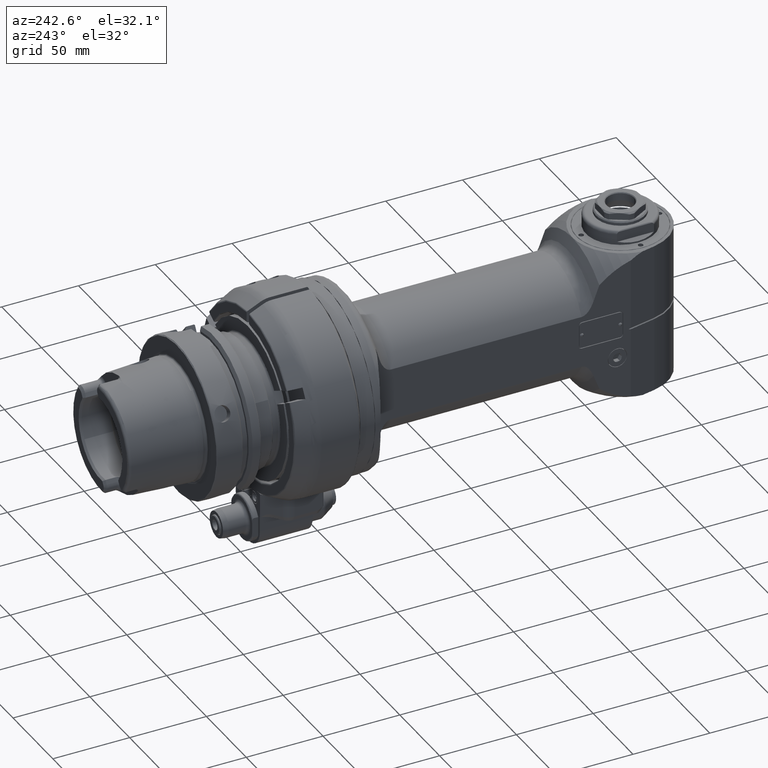
[diagram: clean part render]
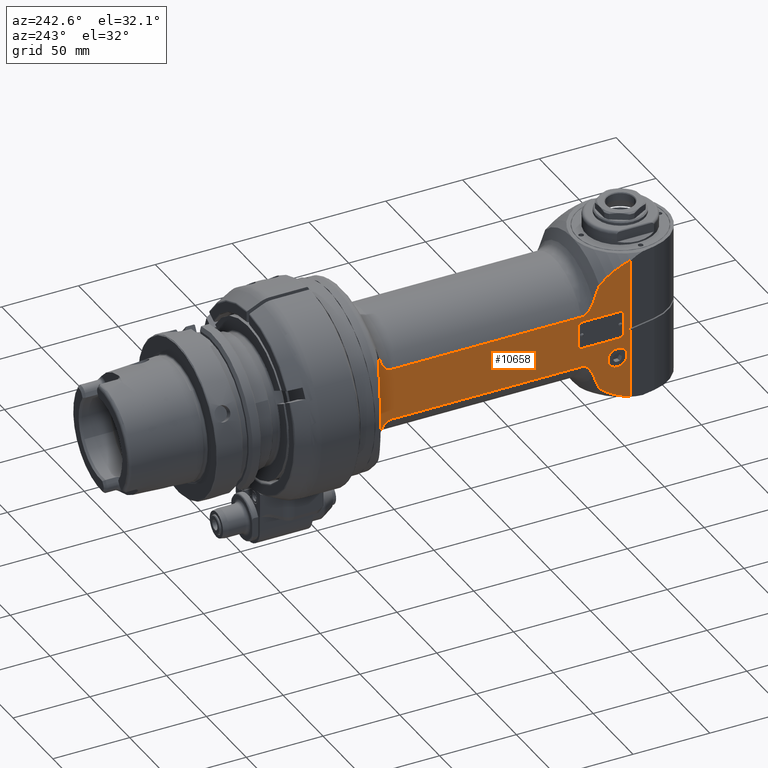
[diagram: same view with one face highlighted and labeled with its STEP entity id]
A machine part, auxiliary view. The second image highlights one B-rep face of the part: STEP entity #10658.
In plain terms, the highlighted planar face has unit normal (1, 0, -0).
Its self-contained STEP definition (entity closure, byte-faithful):
#360=B_SPLINE_CURVE_WITH_KNOTS('',3,(#32864,#32865,#32866,#32867,#32868,
#32869,#32870,#32871,#32872,#32873,#32874,#32875,#32876,#32877),
 .UNSPECIFIED.,.F.,.F.,(4,2,2,2,2,2,4),(-3.38938345646085,-3.26662172016158,
-3.12262372485883,-2.91218233429832,-2.7017409437378,-2.42136508411959,
-2.24338921671169),.UNSPECIFIED.);
#361=B_SPLINE_CURVE_WITH_KNOTS('',3,(#32881,#32882,#32883,#32884,#32885,
#32886,#32887,#32888,#32889,#32890,#32891,#32892,#32893,#32894,#32895,#32896),
 .UNSPECIFIED.,.F.,.F.,(4,2,2,2,2,2,2,4),(3.0557325103438,3.16453283287773,
3.29192380124002,3.4787538185637,3.66558383588739,3.91846915486091,4.17135447383444,
4.18910923555308),.UNSPECIFIED.);
#362=B_SPLINE_CURVE_WITH_KNOTS('',3,(#32907,#32908,#32909,#32910,#32911,
#32912,#32913,#32914,#32915,#32916,#32917,#32918,#32919,#32920,#32921,#32922),
 .UNSPECIFIED.,.F.,.F.,(4,2,2,2,2,2,2,4),(1.92235578593393,1.94011054685315,
2.19299586582667,2.4458811848002,2.63271120212388,2.81954121944757,2.94693218780986,
3.05573251034379),.UNSPECIFIED.);
#363=B_SPLINE_CURVE_WITH_KNOTS('',3,(#32924,#32925,#32926,#32927,#32928,
#32929,#32930,#32931,#32932,#32933,#32934,#32935,#32936,#32937),
 .UNSPECIFIED.,.F.,.F.,(4,2,2,2,2,2,4),(-4.53537769620374,-4.3574018288021,
-4.07702596918389,-3.86658457862338,-3.65614318806286,-3.51214519276011,
-3.38938345646085),.UNSPECIFIED.);
#364=B_SPLINE_CURVE_WITH_KNOTS('',3,(#32955,#32956,#32957,#32958,#32959,
#32960,#32961,#32962,#32963,#32964),.UNSPECIFIED.,.F.,.F.,(4,3,3,4),(4.06829625219017E-6,
0.3333333333333,0.6666666666667,1.),.UNSPECIFIED.);
#365=B_SPLINE_CURVE_WITH_KNOTS('',3,(#32975,#32976,#32977,#32978,#32979,
#32980,#32981,#32982,#32983,#32984,#32985,#32986,#32987,#32988,#32989,#32990,
#32991,#32992,#32993),.UNSPECIFIED.,.F.,.F.,(4,2,2,2,3,2,2,2,4),(0.586526521156412,
0.601693019160203,0.61989198188955,0.625445992489476,0.630141025033814,
0.634836057578152,0.640390068178077,0.658589030907424,0.673754441669544),
 .UNSPECIFIED.);
#649=FACE_BOUND('',#2359,.T.);
#650=FACE_BOUND('',#2360,.T.);
#1054=CIRCLE('',#11713,2.);
#1055=CIRCLE('',#11714,2.);
#1056=CIRCLE('',#11715,2.);
#1057=CIRCLE('',#11716,2.);
#1058=CIRCLE('',#11717,6.25);
#1672=FACE_OUTER_BOUND('',#2358,.T.);
#2358=EDGE_LOOP('',(#8981,#8982,#8983,#8984,#8985,#8986,#8987,#8988,#8989,
#8990,#8991,#8992,#8993,#8994,#8995,#8996,#8997,#8998,#8999,#9000,#9001,
#9002,#9003,#9004,#9005,#9006));
#2359=EDGE_LOOP('',(#9007,#9008,#9009,#9010,#9011,#9012,#9013,#9014));
#2360=EDGE_LOOP('',(#9015));
#2730=(
BOUNDED_CURVE()
B_SPLINE_CURVE(2,(#32834,#32835,#32836),.UNSPECIFIED.,.F.,.F.)
B_SPLINE_CURVE_WITH_KNOTS((3,3),(-6.37611725450735,-5.93914402311009),
 .UNSPECIFIED.)
CURVE()
GEOMETRIC_REPRESENTATION_ITEM()
RATIONAL_B_SPLINE_CURVE((3.03109625503758,3.0115736684826,2.9851874140873))
REPRESENTATION_ITEM('')
);
#2731=(
BOUNDED_CURVE()
B_SPLINE_CURVE(2,(#32840,#32841,#32842),.UNSPECIFIED.,.F.,.F.)
B_SPLINE_CURVE_WITH_KNOTS((3,3),(-29.0812699928069,-29.0631688209348),
 .UNSPECIFIED.)
CURVE()
GEOMETRIC_REPRESENTATION_ITEM()
RATIONAL_B_SPLINE_CURVE((1.01070377409032,1.01114109954095,1.0115778764322))
REPRESENTATION_ITEM('')
);
#2732=(
BOUNDED_CURVE()
B_SPLINE_CURVE(2,(#32844,#32845,#32846),.UNSPECIFIED.,.F.,.F.)
B_SPLINE_CURVE_WITH_KNOTS((3,3),(-19.9866804527026,-19.7686945965766),
 .UNSPECIFIED.)
CURVE()
GEOMETRIC_REPRESENTATION_ITEM()
RATIONAL_B_SPLINE_CURVE((1.00424655198579,1.01180066800987,1.01918950011015))
REPRESENTATION_ITEM('')
);
#2733=(
BOUNDED_CURVE()
B_SPLINE_CURVE(2,(#32848,#32849,#32850),.UNSPECIFIED.,.F.,.F.)
B_SPLINE_CURVE_WITH_KNOTS((3,3),(15.8614960635542,16.1172685456708),
 .UNSPECIFIED.)
CURVE()
GEOMETRIC_REPRESENTATION_ITEM()
RATIONAL_B_SPLINE_CURVE((1.04723283444041,1.03682349322396,1.02606616122681))
REPRESENTATION_ITEM('')
);
#2734=(
BOUNDED_CURVE()
B_SPLINE_CURVE(2,(#32852,#32853,#32854),.UNSPECIFIED.,.F.,.F.)
B_SPLINE_CURVE_WITH_KNOTS((3,3),(13.7580701830611,14.0725444893229),
 .UNSPECIFIED.)
CURVE()
GEOMETRIC_REPRESENTATION_ITEM()
RATIONAL_B_SPLINE_CURVE((1.08930267109013,1.07525245581085,1.06051327922415))
REPRESENTATION_ITEM('')
);
#2735=(
BOUNDED_CURVE()
B_SPLINE_CURVE(2,(#32856,#32857,#32858),.UNSPECIFIED.,.F.,.F.)
B_SPLINE_CURVE_WITH_KNOTS((3,3),(12.5043567703673,12.9108760300901),
 .UNSPECIFIED.)
CURVE()
GEOMETRIC_REPRESENTATION_ITEM()
RATIONAL_B_SPLINE_CURVE((1.14919418411878,1.13056577973156,1.11056846329993))
REPRESENTATION_ITEM('')
);
#2736=(
BOUNDED_CURVE()
B_SPLINE_CURVE(2,(#32860,#32861,#32862),.UNSPECIFIED.,.F.,.F.)
B_SPLINE_CURVE_WITH_KNOTS((3,3),(12.7538152080521,13.9336467514351),
 .UNSPECIFIED.)
CURVE()
GEOMETRIC_REPRESENTATION_ITEM()
RATIONAL_B_SPLINE_CURVE((1.57057976842774,1.51652326734331,1.44758255410693))
REPRESENTATION_ITEM('')
);
#2737=(
BOUNDED_CURVE()
B_SPLINE_CURVE(2,(#32898,#32899,#32900),.UNSPECIFIED.,.F.,.F.)
B_SPLINE_CURVE_WITH_KNOTS((3,3),(-1.68251569462955,-1.5670841050122),
 .UNSPECIFIED.)
CURVE()
GEOMETRIC_REPRESENTATION_ITEM()
RATIONAL_B_SPLINE_CURVE((1.2041077830671,1.19857040561924,1.19283212247741))
REPRESENTATION_ITEM('')
);
#2738=(
BOUNDED_CURVE()
B_SPLINE_CURVE(2,(#32904,#32905,#32906),.UNSPECIFIED.,.F.,.F.)
B_SPLINE_CURVE_WITH_KNOTS((3,3),(8.04558354401387,8.16101513439797),
 .UNSPECIFIED.)
CURVE()
GEOMETRIC_REPRESENTATION_ITEM()
RATIONAL_B_SPLINE_CURVE((1.20410778314095,1.19857040565765,1.19283212247771))
REPRESENTATION_ITEM('')
);
#2739=(
BOUNDED_CURVE()
B_SPLINE_CURVE(2,(#32939,#32940,#32941),.UNSPECIFIED.,.F.,.F.)
B_SPLINE_CURVE_WITH_KNOTS((3,3),(3.00415619201386,4.18398773548825),
 .UNSPECIFIED.)
CURVE()
GEOMETRIC_REPRESENTATION_ITEM()
RATIONAL_B_SPLINE_CURVE((1.447582554107,1.51652326734872,1.57057976843617))
REPRESENTATION_ITEM('')
);
#2740=(
BOUNDED_CURVE()
B_SPLINE_CURVE(2,(#32943,#32944,#32945),.UNSPECIFIED.,.F.,.F.)
B_SPLINE_CURVE_WITH_KNOTS((3,3),(1.0338612736708,1.44038053878032),
 .UNSPECIFIED.)
CURVE()
GEOMETRIC_REPRESENTATION_ITEM()
RATIONAL_B_SPLINE_CURVE((1.11056846277,1.13056577948476,1.14919418411882))
REPRESENTATION_ITEM('')
);
#2741=(
BOUNDED_CURVE()
B_SPLINE_CURVE(2,(#32947,#32948,#32949),.UNSPECIFIED.,.F.,.F.)
B_SPLINE_CURVE_WITH_KNOTS((3,3),(0.6172392737301,0.93171358828536),
 .UNSPECIFIED.)
CURVE()
GEOMETRIC_REPRESENTATION_ITEM()
RATIONAL_B_SPLINE_CURVE((1.06051327798197,1.07525245498641,1.08930267064709))
REPRESENTATION_ITEM('')
);
#2742=(
BOUNDED_CURVE()
B_SPLINE_CURVE(2,(#32951,#32952,#32953),.UNSPECIFIED.,.F.,.F.)
B_SPLINE_CURVE_WITH_KNOTS((3,3),(0.304034443941965,0.559808835705629),
 .UNSPECIFIED.)
CURVE()
GEOMETRIC_REPRESENTATION_ITEM()
RATIONAL_B_SPLINE_CURVE((1.02606599956365,1.03682341449199,1.04723283344327))
REPRESENTATION_ITEM('')
);
#2743=(
BOUNDED_CURVE()
B_SPLINE_CURVE(2,(#32966,#32967,#32968),.UNSPECIFIED.,.F.,.F.)
B_SPLINE_CURVE_WITH_KNOTS((3,3),(-0.23794467547868,-0.21984349965335),
 .UNSPECIFIED.)
CURVE()
GEOMETRIC_REPRESENTATION_ITEM()
RATIONAL_B_SPLINE_CURVE((1.01157788454873,1.01114110756647,1.01070378202461))
REPRESENTATION_ITEM('')
);
#2744=(
BOUNDED_CURVE()
B_SPLINE_CURVE(2,(#32972,#32973,#32974),.UNSPECIFIED.,.F.,.F.)
B_SPLINE_CURVE_WITH_KNOTS((3,3),(-9.29888521673233,-8.86191578947951),
 .UNSPECIFIED.)
CURVE()
GEOMETRIC_REPRESENTATION_ITEM()
RATIONAL_B_SPLINE_CURVE((2.98518787354792,3.01157383847557,3.03109625506803))
REPRESENTATION_ITEM('')
);
#3285=LINE('',#32828,#3952);
#3286=LINE('',#32838,#3953);
#3287=LINE('',#32879,#3954);
#3288=LINE('',#32902,#3955);
#3289=LINE('',#32970,#3956);
#3290=LINE('',#32996,#3957);
#3291=LINE('',#33000,#3958);
#3292=LINE('',#33004,#3959);
#3293=LINE('',#33008,#3960);
#3952=VECTOR('',#14191,124.2601241953);
#3953=VECTOR('',#14198,10.);
#3954=VECTOR('',#14199,124.2601241952);
#3955=VECTOR('',#14200,53.76405748567);
#3956=VECTOR('',#14201,10.);
#3957=VECTOR('',#14202,25.);
#3958=VECTOR('',#14205,14.);
#3959=VECTOR('',#14208,25.);
#3960=VECTOR('',#14211,14.);
#4867=VERTEX_POINT('',#32826);
#4868=VERTEX_POINT('',#32827);
#4869=VERTEX_POINT('',#32832);
#4870=VERTEX_POINT('',#32833);
#4871=VERTEX_POINT('',#32837);
#4872=VERTEX_POINT('',#32839);
#4873=VERTEX_POINT('',#32843);
#4874=VERTEX_POINT('',#32847);
#4875=VERTEX_POINT('',#32851);
#4876=VERTEX_POINT('',#32855);
#4877=VERTEX_POINT('',#32859);
#4878=VERTEX_POINT('',#32863);
#4879=VERTEX_POINT('',#32878);
#4880=VERTEX_POINT('',#32880);
#4881=VERTEX_POINT('',#32897);
#4882=VERTEX_POINT('',#32901);
#4883=VERTEX_POINT('',#32903);
#4884=VERTEX_POINT('',#32923);
#4885=VERTEX_POINT('',#32938);
#4886=VERTEX_POINT('',#32942);
#4887=VERTEX_POINT('',#32946);
#4888=VERTEX_POINT('',#32950);
#4889=VERTEX_POINT('',#32954);
#4890=VERTEX_POINT('',#32965);
#4891=VERTEX_POINT('',#32969);
#4892=VERTEX_POINT('',#32971);
#4893=VERTEX_POINT('',#32994);
#4894=VERTEX_POINT('',#32995);
#4895=VERTEX_POINT('',#32997);
#4896=VERTEX_POINT('',#32999);
#4897=VERTEX_POINT('',#33001);
#4898=VERTEX_POINT('',#33003);
#4899=VERTEX_POINT('',#33005);
#4900=VERTEX_POINT('',#33007);
#4901=VERTEX_POINT('',#33010);
#6291=EDGE_CURVE('',#4867,#4868,#3285,.T.);
#6294=EDGE_CURVE('',#4869,#4870,#2730,.T.);
#6295=EDGE_CURVE('',#4871,#4869,#3286,.T.);
#6296=EDGE_CURVE('',#4871,#4872,#2731,.T.);
#6297=EDGE_CURVE('',#4872,#4873,#2732,.T.);
#6298=EDGE_CURVE('',#4874,#4873,#2733,.T.);
#6299=EDGE_CURVE('',#4875,#4874,#2734,.T.);
#6300=EDGE_CURVE('',#4876,#4875,#2735,.T.);
#6301=EDGE_CURVE('',#4877,#4876,#2736,.T.);
#6302=EDGE_CURVE('',#4878,#4877,#360,.T.);
#6303=EDGE_CURVE('',#4879,#4878,#3287,.T.);
#6304=EDGE_CURVE('',#4879,#4880,#361,.T.);
#6305=EDGE_CURVE('',#4880,#4881,#2737,.T.);
#6306=EDGE_CURVE('',#4882,#4881,#3288,.T.);
#6307=EDGE_CURVE('',#4883,#4882,#2738,.T.);
#6308=EDGE_CURVE('',#4883,#4868,#362,.T.);
#6309=EDGE_CURVE('',#4884,#4867,#363,.T.);
#6310=EDGE_CURVE('',#4885,#4884,#2739,.T.);
#6311=EDGE_CURVE('',#4886,#4885,#2740,.T.);
#6312=EDGE_CURVE('',#4887,#4886,#2741,.T.);
#6313=EDGE_CURVE('',#4888,#4887,#2742,.T.);
#6314=EDGE_CURVE('',#4889,#4888,#364,.T.);
#6315=EDGE_CURVE('',#4889,#4890,#2743,.T.);
#6316=EDGE_CURVE('',#4891,#4890,#3289,.T.);
#6317=EDGE_CURVE('',#4892,#4891,#2744,.T.);
#6318=EDGE_CURVE('',#4892,#4870,#365,.T.);
#6319=EDGE_CURVE('',#4893,#4894,#3290,.T.);
#6320=EDGE_CURVE('',#4894,#4895,#1054,.T.);
#6321=EDGE_CURVE('',#4895,#4896,#3291,.T.);
#6322=EDGE_CURVE('',#4896,#4897,#1055,.T.);
#6323=EDGE_CURVE('',#4897,#4898,#3292,.T.);
#6324=EDGE_CURVE('',#4898,#4899,#1056,.T.);
#6325=EDGE_CURVE('',#4899,#4900,#3293,.T.);
#6326=EDGE_CURVE('',#4900,#4893,#1057,.T.);
#6327=EDGE_CURVE('',#4901,#4901,#1058,.T.);
#8981=ORIENTED_EDGE('',*,*,#6294,.F.);
#8982=ORIENTED_EDGE('',*,*,#6295,.F.);
#8983=ORIENTED_EDGE('',*,*,#6296,.T.);
#8984=ORIENTED_EDGE('',*,*,#6297,.T.);
#8985=ORIENTED_EDGE('',*,*,#6298,.F.);
#8986=ORIENTED_EDGE('',*,*,#6299,.F.);
#8987=ORIENTED_EDGE('',*,*,#6300,.F.);
#8988=ORIENTED_EDGE('',*,*,#6301,.F.);
#8989=ORIENTED_EDGE('',*,*,#6302,.F.);
#8990=ORIENTED_EDGE('',*,*,#6303,.F.);
#8991=ORIENTED_EDGE('',*,*,#6304,.T.);
#8992=ORIENTED_EDGE('',*,*,#6305,.T.);
#8993=ORIENTED_EDGE('',*,*,#6306,.F.);
#8994=ORIENTED_EDGE('',*,*,#6307,.F.);
#8995=ORIENTED_EDGE('',*,*,#6308,.T.);
#8996=ORIENTED_EDGE('',*,*,#6291,.F.);
#8997=ORIENTED_EDGE('',*,*,#6309,.F.);
#8998=ORIENTED_EDGE('',*,*,#6310,.F.);
#8999=ORIENTED_EDGE('',*,*,#6311,.F.);
#9000=ORIENTED_EDGE('',*,*,#6312,.F.);
#9001=ORIENTED_EDGE('',*,*,#6313,.F.);
#9002=ORIENTED_EDGE('',*,*,#6314,.F.);
#9003=ORIENTED_EDGE('',*,*,#6315,.T.);
#9004=ORIENTED_EDGE('',*,*,#6316,.F.);
#9005=ORIENTED_EDGE('',*,*,#6317,.F.);
#9006=ORIENTED_EDGE('',*,*,#6318,.T.);
#9007=ORIENTED_EDGE('',*,*,#6319,.T.);
#9008=ORIENTED_EDGE('',*,*,#6320,.T.);
#9009=ORIENTED_EDGE('',*,*,#6321,.T.);
#9010=ORIENTED_EDGE('',*,*,#6322,.T.);
#9011=ORIENTED_EDGE('',*,*,#6323,.T.);
#9012=ORIENTED_EDGE('',*,*,#6324,.T.);
#9013=ORIENTED_EDGE('',*,*,#6325,.T.);
#9014=ORIENTED_EDGE('',*,*,#6326,.T.);
#9015=ORIENTED_EDGE('',*,*,#6327,.T.);
#10173=PLANE('',#11712);
#10658=ADVANCED_FACE('',(#1672,#649,#650),#10173,.F.);
#11712=AXIS2_PLACEMENT_3D('',#32831,#14196,#14197);
#11713=AXIS2_PLACEMENT_3D('',#32998,#14203,#14204);
#11714=AXIS2_PLACEMENT_3D('',#33002,#14206,#14207);
#11715=AXIS2_PLACEMENT_3D('',#33006,#14209,#14210);
#11716=AXIS2_PLACEMENT_3D('',#33009,#14212,#14213);
#11717=AXIS2_PLACEMENT_3D('',#33011,#14214,#14215);
#14191=DIRECTION('',(-1.,-1.188525350221E-13,-5.93547901626E-14));
#14196=DIRECTION('center_axis',(0.,0.,1.));
#14197=DIRECTION('ref_axis',(0.,1.,0.));
#14198=DIRECTION('',(0.,1.,0.));
#14199=DIRECTION('',(1.,0.,0.));
#14200=DIRECTION('',(-1.252342787904E-12,-1.,-1.054103638278E-12));
#14201=DIRECTION('',(0.,1.,0.));
#14202=DIRECTION('',(1.,0.,0.));
#14203=DIRECTION('center_axis',(0.,0.,1.));
#14204=DIRECTION('ref_axis',(0.,-1.,0.));
#14205=DIRECTION('',(0.,1.,0.));
#14206=DIRECTION('center_axis',(0.,0.,1.));
#14207=DIRECTION('ref_axis',(1.,0.,0.));
#14208=DIRECTION('',(-1.,0.,0.));
#14209=DIRECTION('center_axis',(0.,0.,1.));
#14210=DIRECTION('ref_axis',(0.,1.,0.));
#14211=DIRECTION('',(0.,-1.,0.));
#14212=DIRECTION('center_axis',(0.,0.,1.));
#14213=DIRECTION('ref_axis',(-1.,0.,0.));
#14214=DIRECTION('center_axis',(0.,0.,1.));
#14215=DIRECTION('ref_axis',(0.,-1.,0.));
#32826=CARTESIAN_POINT('',(235.2122440389,16.97056274848,-34.));
#32827=CARTESIAN_POINT('',(110.9521198437,16.97056274848,-34.));
#32828=CARTESIAN_POINT('',(235.2122440389,16.97056274848,-34.));
#32831=CARTESIAN_POINT('Origin',(208.688375936,-43.96491673104,-34.));
#32832=CARTESIAN_POINT('',(267.207437955125,-0.646011301663342,-34.0000000010184));
#32833=CARTESIAN_POINT('',(266.028037948985,-0.282846365790939,-33.9999999587464));
#32834=CARTESIAN_POINT('Ctrl Pts',(267.207437954959,-0.646011302194517,
-34.));
#32835=CARTESIAN_POINT('Ctrl Pts',(266.626514019068,-0.492929705822718,
-34.));
#32836=CARTESIAN_POINT('Ctrl Pts',(266.028037929158,-0.282846422218705,
-34.));
#32837=CARTESIAN_POINT('',(267.2074379648,-46.31735122135,-34.));
#32838=CARTESIAN_POINT('',(267.207437964818,-57.38245956552,-34.));
#32839=CARTESIAN_POINT('',(266.759249436779,-46.2192805081788,-33.9999999982256));
#32840=CARTESIAN_POINT('Ctrl Pts',(267.2074379648,-46.3173512213512,-34.));
#32841=CARTESIAN_POINT('Ctrl Pts',(266.983106204958,-46.2682821183061,-34.));
#32842=CARTESIAN_POINT('Ctrl Pts',(266.75924943722,-46.2192805061775,-34.));
#32843=CARTESIAN_POINT('',(261.759249421153,-44.5451818399027,-34.0000000002716));
#32844=CARTESIAN_POINT('Ctrl Pts',(266.759249436933,-46.2192805077322,-34.));
#32845=CARTESIAN_POINT('Ctrl Pts',(264.213138356735,-45.3723433874321,-34.));
#32846=CARTESIAN_POINT('Ctrl Pts',(261.759249421062,-44.5451818401711,-34.));
#32847=CARTESIAN_POINT('',(256.759249414489,-42.2329602400364,-34.0000000018601));
#32848=CARTESIAN_POINT('Ctrl Pts',(256.759249413712,-42.2329602417,-34.));
#32849=CARTESIAN_POINT('Ctrl Pts',(259.192636398675,-43.3699887108055,-34.));
#32850=CARTESIAN_POINT('Ctrl Pts',(261.759249421109,-44.5451818399988,-34.));
#32851=CARTESIAN_POINT('',(251.759249376987,-39.1948333572121,-34.0000000127697));
#32852=CARTESIAN_POINT('Ctrl Pts',(251.759249370577,-39.1948333676066,-34.));
#32853=CARTESIAN_POINT('Ctrl Pts',(254.165972675464,-40.6805171026288,-34.));
#32854=CARTESIAN_POINT('Ctrl Pts',(256.75924941407,-42.2329602407372,-34.));
#32855=CARTESIAN_POINT('',(246.759249568616,-35.2845577993553,-33.999999924886));
#32856=CARTESIAN_POINT('Ctrl Pts',(246.759249643607,-35.2845577058663,-34.));
#32857=CARTESIAN_POINT('Ctrl Pts',(249.127995902977,-37.1837516526063,-34.));
#32858=CARTESIAN_POINT('Ctrl Pts',(251.759249373315,-39.1948333620264,-34.));
#32859=CARTESIAN_POINT('',(243.006472673,-25.50000000007,-34.00000000001));
#32860=CARTESIAN_POINT('Ctrl Pts',(243.006472673161,-25.5000000006562,-34.));
#32861=CARTESIAN_POINT('Ctrl Pts',(244.580816775586,-30.0447399572416,-34.));
#32862=CARTESIAN_POINT('Ctrl Pts',(246.75924954011,-35.2845578112441,-34.));
#32863=CARTESIAN_POINT('',(235.2122440389,-16.97056274848,-34.));
#32864=CARTESIAN_POINT('Ctrl Pts',(235.2122440389,-16.9705627484771,-34.));
#32865=CARTESIAN_POINT('Ctrl Pts',(235.621449826564,-16.9705627484771,-34.));
#32866=CARTESIAN_POINT('Ctrl Pts',(236.105867080769,-17.0509805712282,-34.));
#32867=CARTESIAN_POINT('Ctrl Pts',(236.952877761955,-17.3216241650835,-34.));
#32868=CARTESIAN_POINT('Ctrl Pts',(237.466115327277,-17.5830700752859,-34.));
#32869=CARTESIAN_POINT('Ctrl Pts',(238.450410072228,-18.236539663176,-34.));
#32870=CARTESIAN_POINT('Ctrl Pts',(239.018125943999,-18.7484497607113,-34.));
#32871=CARTESIAN_POINT('Ctrl Pts',(240.041991813742,-19.8818483557008,-34.));
#32872=CARTESIAN_POINT('Ctrl Pts',(240.499302079956,-20.5022881748303,-34.));
#32873=CARTESIAN_POINT('Ctrl Pts',(241.390853415105,-21.8740827520354,-34.));
#32874=CARTESIAN_POINT('Ctrl Pts',(241.879221421984,-22.775617262053,-34.));
#32875=CARTESIAN_POINT('Ctrl Pts',(242.563063857023,-24.3019762332261,-34.));
#32876=CARTESIAN_POINT('Ctrl Pts',(242.801163143517,-24.9073224395383,-34.));
#32877=CARTESIAN_POINT('Ctrl Pts',(243.006472672986,-25.5000000000749,-34.));
#32878=CARTESIAN_POINT('',(110.9521198437,-16.97056274848,-34.));
#32879=CARTESIAN_POINT('',(110.9521198437,-16.97056274848,-34.));
#32880=CARTESIAN_POINT('',(103.701657808685,-25.6979316320458,-34.0000002636034));
#32881=CARTESIAN_POINT('Ctrl Pts',(110.9521198437,-16.9705627484771,-34.));
#32882=CARTESIAN_POINT('Ctrl Pts',(110.58945210192,-16.9705627484771,-34.));
#32883=CARTESIAN_POINT('Ctrl Pts',(110.160088938658,-17.041608064786,-34.));
#32884=CARTESIAN_POINT('Ctrl Pts',(109.410012247592,-17.2808423077824,-34.));
#32885=CARTESIAN_POINT('Ctrl Pts',(108.95582872201,-17.5118675579487,-34.));
#32886=CARTESIAN_POINT('Ctrl Pts',(108.083318701176,-18.0913327478181,-34.));
#32887=CARTESIAN_POINT('Ctrl Pts',(107.580207465488,-18.5465996865153,-34.));
#32888=CARTESIAN_POINT('Ctrl Pts',(106.674401664489,-19.5553043516449,-34.));
#32889=CARTESIAN_POINT('Ctrl Pts',(106.270623996535,-20.1077689382487,-34.));
#32890=CARTESIAN_POINT('Ctrl Pts',(105.477048966678,-21.3400705673322,-34.));
#32891=CARTESIAN_POINT('Ctrl Pts',(105.041213079383,-22.1555959983674,-34.));
#32892=CARTESIAN_POINT('Ctrl Pts',(104.295790524545,-23.8439416682403,-34.));
#32893=CARTESIAN_POINT('Ctrl Pts',(103.985917934121,-24.7166356546218,-34.));
#32894=CARTESIAN_POINT('Ctrl Pts',(103.734255569915,-25.5829560865947,-34.));
#32895=CARTESIAN_POINT('Ctrl Pts',(103.71788059219,-25.6402343030476,-34.));
#32896=CARTESIAN_POINT('Ctrl Pts',(103.701657899555,-25.6979316575957,-34.));
#32897=CARTESIAN_POINT('',(103.363925938415,-26.8820294689953,-34.0000000485823));
#32898=CARTESIAN_POINT('Ctrl Pts',(103.701657899584,-25.697931657605,-34.));
#32899=CARTESIAN_POINT('Ctrl Pts',(103.536594834209,-26.2849923268629,-34.));
#32900=CARTESIAN_POINT('Ctrl Pts',(103.363926066431,-26.8820295060187,-34.));
#32901=CARTESIAN_POINT('',(103.363925938442,26.8820294689695,-34.0000000485634));
#32902=CARTESIAN_POINT('',(103.3639256683,26.88202874288,-34.00000014569));
#32903=CARTESIAN_POINT('',(103.70165781031,25.6979316240932,-34.0000002652437));
#32904=CARTESIAN_POINT('Ctrl Pts',(103.701657901775,25.6979316498114,-34.));
#32905=CARTESIAN_POINT('Ctrl Pts',(103.536594835359,26.2849923228853,-34.));
#32906=CARTESIAN_POINT('Ctrl Pts',(103.36392606644,26.8820295059876,-34.));
#32907=CARTESIAN_POINT('Ctrl Pts',(103.701657901746,25.6979316498021,-34.));
#32908=CARTESIAN_POINT('Ctrl Pts',(103.717880593664,25.6402342978896,-34.));
#32909=CARTESIAN_POINT('Ctrl Pts',(103.734255570658,25.5829560840358,-34.));
#32910=CARTESIAN_POINT('Ctrl Pts',(103.985917934121,24.7166356546218,-34.));
#32911=CARTESIAN_POINT('Ctrl Pts',(104.295790524545,23.8439416682403,-34.));
#32912=CARTESIAN_POINT('Ctrl Pts',(105.041213079383,22.1555959983674,-34.));
#32913=CARTESIAN_POINT('Ctrl Pts',(105.477048966678,21.3400705673322,-34.));
#32914=CARTESIAN_POINT('Ctrl Pts',(106.270623996535,20.1077689382487,-34.));
#32915=CARTESIAN_POINT('Ctrl Pts',(106.674401664489,19.5553043516449,-34.));
#32916=CARTESIAN_POINT('Ctrl Pts',(107.580207465488,18.5465996865153,-34.));
#32917=CARTESIAN_POINT('Ctrl Pts',(108.083318701176,18.0913327478181,-34.));
#32918=CARTESIAN_POINT('Ctrl Pts',(108.95582872201,17.5118675579487,-34.));
#32919=CARTESIAN_POINT('Ctrl Pts',(109.410012247592,17.2808423077824,-34.));
#32920=CARTESIAN_POINT('Ctrl Pts',(110.160088938658,17.041608064786,-34.));
#32921=CARTESIAN_POINT('Ctrl Pts',(110.58945210192,16.9705627484771,-34.));
#32922=CARTESIAN_POINT('Ctrl Pts',(110.9521198437,16.9705627484771,-34.));
#32923=CARTESIAN_POINT('',(243.006472673,25.5,-34.));
#32924=CARTESIAN_POINT('Ctrl Pts',(243.006472672964,25.5000000000124,-34.));
#32925=CARTESIAN_POINT('Ctrl Pts',(242.801163143501,24.9073224394958,-34.));
#32926=CARTESIAN_POINT('Ctrl Pts',(242.563063857014,24.3019762332053,-34.));
#32927=CARTESIAN_POINT('Ctrl Pts',(241.879221421984,22.775617262053,-34.));
#32928=CARTESIAN_POINT('Ctrl Pts',(241.390853415105,21.8740827520354,-34.));
#32929=CARTESIAN_POINT('Ctrl Pts',(240.499302079956,20.5022881748303,-34.));
#32930=CARTESIAN_POINT('Ctrl Pts',(240.041991813742,19.8818483557008,-34.));
#32931=CARTESIAN_POINT('Ctrl Pts',(239.018125943999,18.7484497607113,-34.));
#32932=CARTESIAN_POINT('Ctrl Pts',(238.450410072228,18.236539663176,-34.));
#32933=CARTESIAN_POINT('Ctrl Pts',(237.466115327277,17.5830700752859,-34.));
#32934=CARTESIAN_POINT('Ctrl Pts',(236.952877761955,17.3216241650835,-34.));
#32935=CARTESIAN_POINT('Ctrl Pts',(236.105867080769,17.0509805712282,-34.));
#32936=CARTESIAN_POINT('Ctrl Pts',(235.621449826564,16.9705627484771,-34.));
#32937=CARTESIAN_POINT('Ctrl Pts',(235.2122440389,16.9705627484771,-34.));
#32938=CARTESIAN_POINT('',(246.759249568613,35.2845577993495,-33.9999999248876));
#32939=CARTESIAN_POINT('Ctrl Pts',(246.759249540108,35.2845578112381,-34.));
#32940=CARTESIAN_POINT('Ctrl Pts',(244.580816775423,30.0447399568487,-34.));
#32941=CARTESIAN_POINT('Ctrl Pts',(243.006472672924,25.4999999999712,-34.));
#32942=CARTESIAN_POINT('',(251.759249442686,39.1948334183867,-33.9999999944184));
#32943=CARTESIAN_POINT('Ctrl Pts',(251.759249444299,39.1948334162792,-34.));
#32944=CARTESIAN_POINT('Ctrl Pts',(249.127995934877,37.1837516781831,-34.));
#32945=CARTESIAN_POINT('Ctrl Pts',(246.759249643603,35.2845577058625,-34.));
#32946=CARTESIAN_POINT('',(256.759249625092,42.2329603903828,-33.9999999541783));
#32947=CARTESIAN_POINT('Ctrl Pts',(256.759249635662,42.2329603733915,-34.));
#32948=CARTESIAN_POINT('Ctrl Pts',(254.165972818531,40.6805171901924,-34.));
#32949=CARTESIAN_POINT('Ctrl Pts',(251.759249445488,39.1948334138498,-34.));
#32950=CARTESIAN_POINT('',(261.759288970778,44.5451987472087,-33.9999953154873));
#32951=CARTESIAN_POINT('Ctrl Pts',(261.759288397033,44.5451996861776,-34.));
#32952=CARTESIAN_POINT('Ctrl Pts',(259.192654988596,43.3699973960213,-34.));
#32953=CARTESIAN_POINT('Ctrl Pts',(256.759249644497,42.2329603495368,-34.));
#32954=CARTESIAN_POINT('',(266.759249510105,46.2192797430743,-34.0000010762162));
#32955=CARTESIAN_POINT('Ctrl Pts',(266.75924975162,46.21927901702,-34.0000021687571));
#32956=CARTESIAN_POINT('Ctrl Pts',(266.199194411101,46.0329824752043,-34.0000021773105));
#32957=CARTESIAN_POINT('Ctrl Pts',(265.640663597195,45.8468003072202,-33.9999985260179));
#32958=CARTESIAN_POINT('Ctrl Pts',(265.083625507963,45.6607085896573,-33.9999982487117));
#32959=CARTESIAN_POINT('Ctrl Pts',(264.52658062006,45.474614600838,-33.9999979714021));
#32960=CARTESIAN_POINT('Ctrl Pts',(263.971028502198,45.288611013723,-34.0000010807426));
#32961=CARTESIAN_POINT('Ctrl Pts',(263.416953538895,45.1026883322671,-34.0000018117867));
#32962=CARTESIAN_POINT('Ctrl Pts',(262.862878575592,44.9167656508112,-34.0000025428307));
#32963=CARTESIAN_POINT('Ctrl Pts',(262.310280779325,44.7309238626727,-34.0000008345819));
#32964=CARTESIAN_POINT('Ctrl Pts',(261.759328518856,44.5452078583382,-34.0000008440852));
#32965=CARTESIAN_POINT('',(267.2074379648,46.31735122135,-34.));
#32966=CARTESIAN_POINT('Ctrl Pts',(266.759249347369,46.2192804865094,-34.));
#32967=CARTESIAN_POINT('Ctrl Pts',(266.983106159937,46.2682821084584,-34.));
#32968=CARTESIAN_POINT('Ctrl Pts',(267.207437964799,46.3173512213511,-34.));
#32969=CARTESIAN_POINT('',(267.207437956005,0.646011301948816,-34.000000000926));
#32970=CARTESIAN_POINT('',(267.207437964818,-57.38245956552,-34.));
#32971=CARTESIAN_POINT('',(266.02804848207,0.282850000116335,-33.9999999177095));
#32972=CARTESIAN_POINT('Ctrl Pts',(266.02804844247,0.282850112707873,-34.));
#32973=CARTESIAN_POINT('Ctrl Pts',(266.626519110099,0.492931047422561,-34.));
#32974=CARTESIAN_POINT('Ctrl Pts',(267.207437955856,0.646011302432367,-34.));
#32975=CARTESIAN_POINT('Ctrl Pts',(266.02804844262,0.282850112570434,-34.));
#32976=CARTESIAN_POINT('Ctrl Pts',(265.97912759737,0.265678345127687,-34.));
#32977=CARTESIAN_POINT('Ctrl Pts',(265.93195336812,0.2458850742526,-34.));
#32978=CARTESIAN_POINT('Ctrl Pts',(265.834158920257,0.192915889607832,-34.));
#32979=CARTESIAN_POINT('Ctrl Pts',(265.774718078894,0.150891821636421,-34.));
#32980=CARTESIAN_POINT('Ctrl Pts',(265.72907866478,0.0861927154154464,-34.));
#32981=CARTESIAN_POINT('Ctrl Pts',(265.71861405688,0.0665956615195297,-34.));
#32982=CARTESIAN_POINT('Ctrl Pts',(265.707878623186,0.0341627517792902,
-34.));
#32983=CARTESIAN_POINT('Ctrl Pts',(265.704720248985,0.0156501084811802,
-34.));
#32984=CARTESIAN_POINT('Ctrl Pts',(265.704720248985,5.32907051820075E-14,
-34.));
#32985=CARTESIAN_POINT('Ctrl Pts',(265.704720248985,-0.0156501084810736,
-34.));
#32986=CARTESIAN_POINT('Ctrl Pts',(265.707878623186,-0.0341627517791836,
-34.));
#32987=CARTESIAN_POINT('Ctrl Pts',(265.71861405688,-0.0665956615194232,
-34.));
#32988=CARTESIAN_POINT('Ctrl Pts',(265.72907866478,-0.0861927154153397,
-34.));
#32989=CARTESIAN_POINT('Ctrl Pts',(265.774718078894,-0.150891821636315,
-34.));
#32990=CARTESIAN_POINT('Ctrl Pts',(265.834158920257,-0.192915889607726,
-34.));
#32991=CARTESIAN_POINT('Ctrl Pts',(265.931950181405,-0.245883348206948,
-34.));
#32992=CARTESIAN_POINT('Ctrl Pts',(265.97912084601,-0.265675490782092,-34.));
#32993=CARTESIAN_POINT('Ctrl Pts',(266.028037929194,-0.282846422187643,
-34.));
#32994=CARTESIAN_POINT('',(235.2914126055,-13.50000037207,-34.));
#32995=CARTESIAN_POINT('',(260.2914126055,-13.50000037207,-34.));
#32996=CARTESIAN_POINT('',(235.2914126055,-13.50000037207,-34.));
#32997=CARTESIAN_POINT('',(262.2914126055,-11.50000037207,-34.));
#32998=CARTESIAN_POINT('Origin',(260.2914126055,-11.50000037207,-34.));
#32999=CARTESIAN_POINT('',(262.2914126055,2.49999962793,-34.));
#33000=CARTESIAN_POINT('',(262.2914126055,-11.50000037207,-34.));
#33001=CARTESIAN_POINT('',(260.2914126055,4.49999962793,-34.));
#33002=CARTESIAN_POINT('Origin',(260.2914126055,2.49999962793,-34.));
#33003=CARTESIAN_POINT('',(235.2914126055,4.49999962793,-34.));
#33004=CARTESIAN_POINT('',(260.2914126055,4.49999962793,-34.));
#33005=CARTESIAN_POINT('',(233.2914126055,2.49999962793,-34.));
#33006=CARTESIAN_POINT('Origin',(235.2914126055,2.49999962793,-34.));
#33007=CARTESIAN_POINT('',(233.2914126055,-11.50000037207,-34.));
#33008=CARTESIAN_POINT('',(233.2914126055,2.49999962793,-34.));
#33009=CARTESIAN_POINT('Origin',(235.2914126055,-11.50000037207,-34.));
#33010=CARTESIAN_POINT('',(258.563097,23.75,-34.));
#33011=CARTESIAN_POINT('Origin',(258.563097,17.5,-34.));